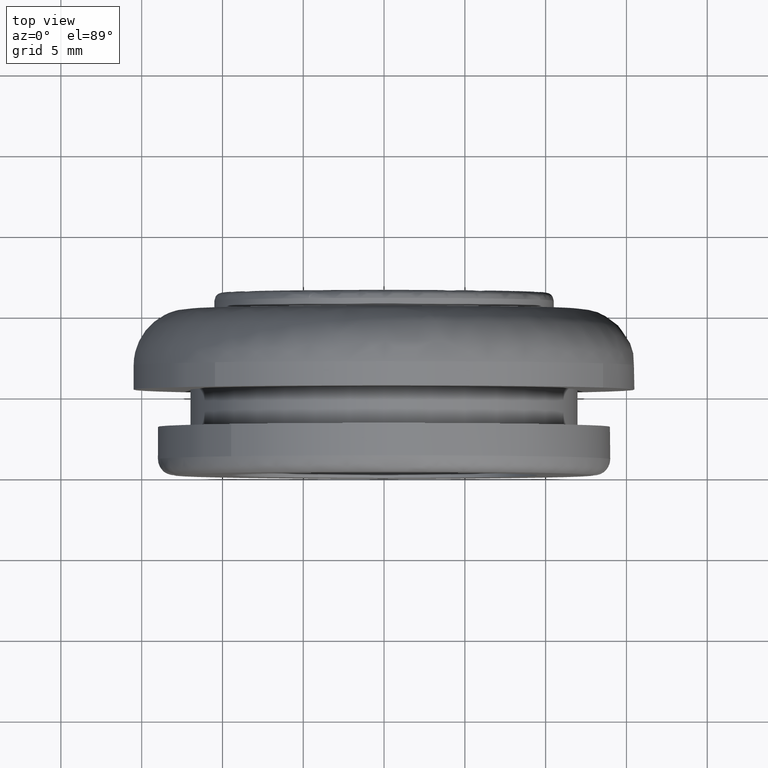
[diagram: clean part render]
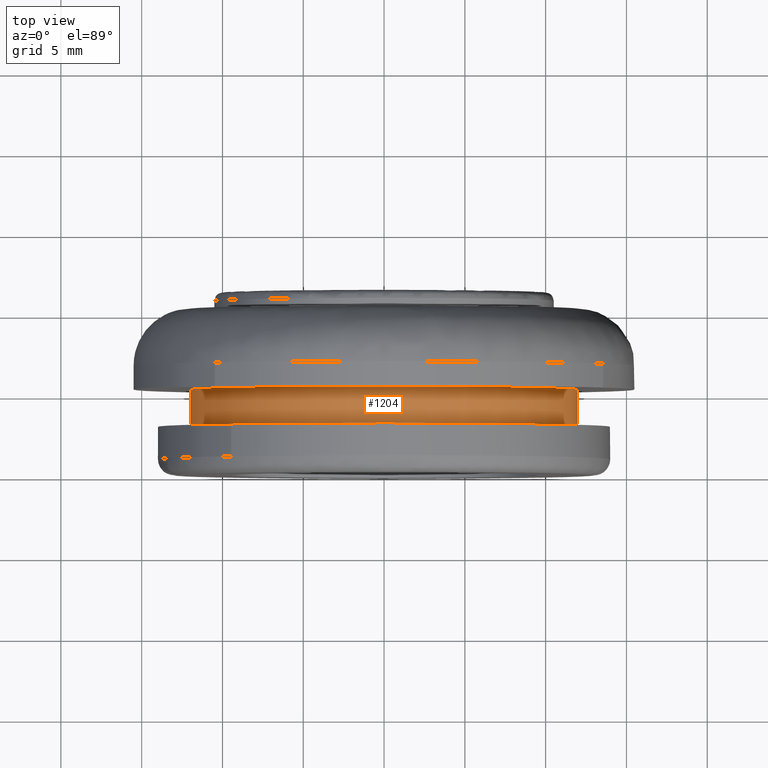
[diagram: same view with one face highlighted and labeled with its STEP entity id]
A machine part, top view. The second image highlights one B-rep face of the part: STEP entity #1204.
In plain terms, the highlighted face is a freeform B-spline surface patch.
Its self-contained STEP definition (entity closure, byte-faithful):
#1102=CARTESIAN_POINT('',(11.916114316363995,5.357500000000001,-1.416410815881102));
#1103=CARTESIAN_POINT('',(11.956651385383269,5.357500000000000,-1.075376743655732));
#1104=CARTESIAN_POINT('',(11.977617581062400,5.357500000000001,-0.732582474418284));
#1105=CARTESIAN_POINT('',(12.710200055480684,5.357500000000001,11.245035106644115));
#1106=CARTESIAN_POINT('',(0.732582474418284,5.357500000000001,11.977617581062400));
#1107=CARTESIAN_POINT('',(-11.245035106644117,5.357500000000001,12.710200055480684));
#1108=CARTESIAN_POINT('',(-11.977617581062400,5.357500000000001,0.732582474418284));
#1109=CARTESIAN_POINT('',(11.916114316363995,2.941062500000000,-1.416410815881102));
#1110=CARTESIAN_POINT('',(11.956651385383269,2.941062500000000,-1.075376743655732));
#1111=CARTESIAN_POINT('',(11.977617581062400,2.941062500000000,-0.732582474418284));
#1112=CARTESIAN_POINT('',(12.710200055480684,2.941062500000000,11.245035106644115));
#1113=CARTESIAN_POINT('',(0.732582474418284,2.941062500000000,11.977617581062400));
#1114=CARTESIAN_POINT('',(-11.245035106644117,2.941062500000000,12.710200055480684));
#1115=CARTESIAN_POINT('',(-11.977617581062400,2.941062500000000,0.732582474418284));
#1123=(BOUNDED_SURFACE()B_SPLINE_SURFACE(2,1,((#1102,#1109),(#1103,#1110),(#1104,#1111),(#1105,#1112),(#1106,#1113),(#1107,#1114),(#1108,#1115)),.UNSPECIFIED.,.F.,.F.,.U.)B_SPLINE_SURFACE_WITH_KNOTS((3,2,2,3),(2,2),(0.0,0.795290039756343,20.677541033664909,40.559792027573472),(0.0,2.416437500000002),.UNSPECIFIED.)GEOMETRIC_REPRESENTATION_ITEM()RATIONAL_B_SPLINE_SURFACE(((0.977505800795127,0.977505800795127),(0.988284271247462,0.988284271247462),(1.0,1.0),(0.707106781186548,0.707106781186548),(1.0,1.0),(0.707106781186548,0.707106781186548),(1.0,1.0)))REPRESENTATION_ITEM('')SURFACE());
#1124=CARTESIAN_POINT('',(11.916115705678759,3.000000000000162,-1.416399127625196));
#1125=VERTEX_POINT('',#1124);
#1126=CARTESIAN_POINT('',(0.0,3.0,12.0));
#1127=VERTEX_POINT('',#1126);
#1128=CARTESIAN_POINT('',(11.916115705678754,3.000000000000162,-1.416399127625195));
#1129=CARTESIAN_POINT('',(12.000000000000004,3.000000000000001,-0.710683529912454));
#1130=CARTESIAN_POINT('',(12.0,3.0,-3.061516E-016));
#1131=CARTESIAN_POINT('',(12.0,3.0,12.0));
#1132=CARTESIAN_POINT('',(0.0,3.0,12.0));
#1140=(BOUNDED_CURVE()B_SPLINE_CURVE(2,(#1128,#1129,#1130,#1131,#1132),.UNSPECIFIED.,.F.,.U.)B_SPLINE_CURVE_WITH_KNOTS((3,2,3),(0.229562639287245,0.250000000000000,0.500000000000000),.UNSPECIFIED.)CURVE()GEOMETRIC_REPRESENTATION_ITEM()RATIONAL_B_SPLINE_CURVE((0.956027079107264,0.976056142547158,1.0,0.707106781186548,1.0))REPRESENTATION_ITEM(''));
#1141=EDGE_CURVE('',#1125,#1127,#1140,.T.);
#1142=ORIENTED_EDGE('',*,*,#1141,.F.);
#1143=CARTESIAN_POINT('',(11.916115688542870,5.300000000000001,-1.416399271790049));
#1144=VERTEX_POINT('',#1143);
#1145=CARTESIAN_POINT('',(11.916115688542870,5.300000000000001,-1.416399271790049));
#1146=CARTESIAN_POINT('',(11.916115705678759,3.000000000000162,-1.416399127625196));
#1147=QUASI_UNIFORM_CURVE('',1,(#1145,#1146),.UNSPECIFIED.,.F.,.U.);
#1148=EDGE_CURVE('',#1144,#1125,#1147,.T.);
#1149=ORIENTED_EDGE('',*,*,#1148,.F.);
#1150=CARTESIAN_POINT('',(0.0,5.300000000000000,12.0));
#1151=VERTEX_POINT('',#1150);
#1152=CARTESIAN_POINT('',(11.916115688542867,5.300000000000001,-1.416399271790049));
#1153=CARTESIAN_POINT('',(11.999999999999996,5.300000000000000,-0.710683602756906));
#1154=CARTESIAN_POINT('',(12.0,5.300000000000000,-3.061516E-016));
#1155=CARTESIAN_POINT('',(12.0,5.300000000000000,12.0));
#1156=CARTESIAN_POINT('',(0.0,5.300000000000000,12.0));
#1164=(BOUNDED_CURVE()B_SPLINE_CURVE(2,(#1152,#1153,#1154,#1155,#1156),.UNSPECIFIED.,.F.,.U.)B_SPLINE_CURVE_WITH_KNOTS((3,2,3),(0.229562637242591,0.250000000000000,0.500000000000000),.UNSPECIFIED.)CURVE()GEOMETRIC_REPRESENTATION_ITEM()RATIONAL_B_SPLINE_CURVE((0.956027075099653,0.976056140151697,1.0,0.707106781186548,1.0))REPRESENTATION_ITEM(''));
#1165=EDGE_CURVE('',#1144,#1151,#1164,.T.);
#1166=ORIENTED_EDGE('',*,*,#1165,.T.);
#1167=CARTESIAN_POINT('',(-11.977617765881870,5.299999999999999,0.732579452634160));
#1168=VERTEX_POINT('',#1167);
#1169=CARTESIAN_POINT('',(0.0,5.300000000000000,12.0));
#1170=CARTESIAN_POINT('',(-11.288475656113119,5.300000000000001,12.0));
#1171=CARTESIAN_POINT('',(-11.977617765881872,5.299999999999999,0.732579452634160));
#1179=(BOUNDED_CURVE()B_SPLINE_CURVE(2,(#1169,#1170,#1171),.UNSPECIFIED.,.F.,.U.)B_SPLINE_CURVE_WITH_KNOTS((3,3),(0.500000000000000,0.739333005773093),.UNSPECIFIED.)CURVE()GEOMETRIC_REPRESENTATION_ITEM()RATIONAL_B_SPLINE_CURVE((1.0,0.719603942283281,0.976072134968707))REPRESENTATION_ITEM(''));
#1180=EDGE_CURVE('',#1151,#1168,#1179,.T.);
#1181=ORIENTED_EDGE('',*,*,#1180,.T.);
#1182=CARTESIAN_POINT('',(-11.977617768188081,3.000000000000031,0.732579414927706));
#1183=VERTEX_POINT('',#1182);
#1184=CARTESIAN_POINT('',(-11.977617765881870,5.299999999999999,0.732579452634160));
#1185=CARTESIAN_POINT('',(-11.977617768188081,3.000000000000031,0.732579414927706));
#1186=QUASI_UNIFORM_CURVE('',1,(#1184,#1185),.UNSPECIFIED.,.F.,.U.);
#1187=EDGE_CURVE('',#1168,#1183,#1186,.T.);
#1188=ORIENTED_EDGE('',*,*,#1187,.T.);
#1189=CARTESIAN_POINT('',(0.0,3.0,12.0));
#1190=CARTESIAN_POINT('',(-11.288475691716508,3.0,12.0));
#1191=CARTESIAN_POINT('',(-11.977617768188077,3.000000000000031,0.732579414927706));
#1199=(BOUNDED_CURVE()B_SPLINE_CURVE(2,(#1189,#1190,#1191),.UNSPECIFIED.,.F.,.U.)B_SPLINE_CURVE_WITH_KNOTS((3,3),(0.500000000000000,0.739333006316284),.UNSPECIFIED.)CURVE()GEOMETRIC_REPRESENTATION_ITEM()RATIONAL_B_SPLINE_CURVE((1.0,0.719603941646893,0.976072136132868))REPRESENTATION_ITEM(''));
#1200=EDGE_CURVE('',#1127,#1183,#1199,.T.);
#1201=ORIENTED_EDGE('',*,*,#1200,.F.);
#1202=EDGE_LOOP('',(#1142,#1149,#1166,#1181,#1188,#1201));
#1203=FACE_OUTER_BOUND('',#1202,.T.);
#1204=ADVANCED_FACE('',(#1203),#1123,.T.);